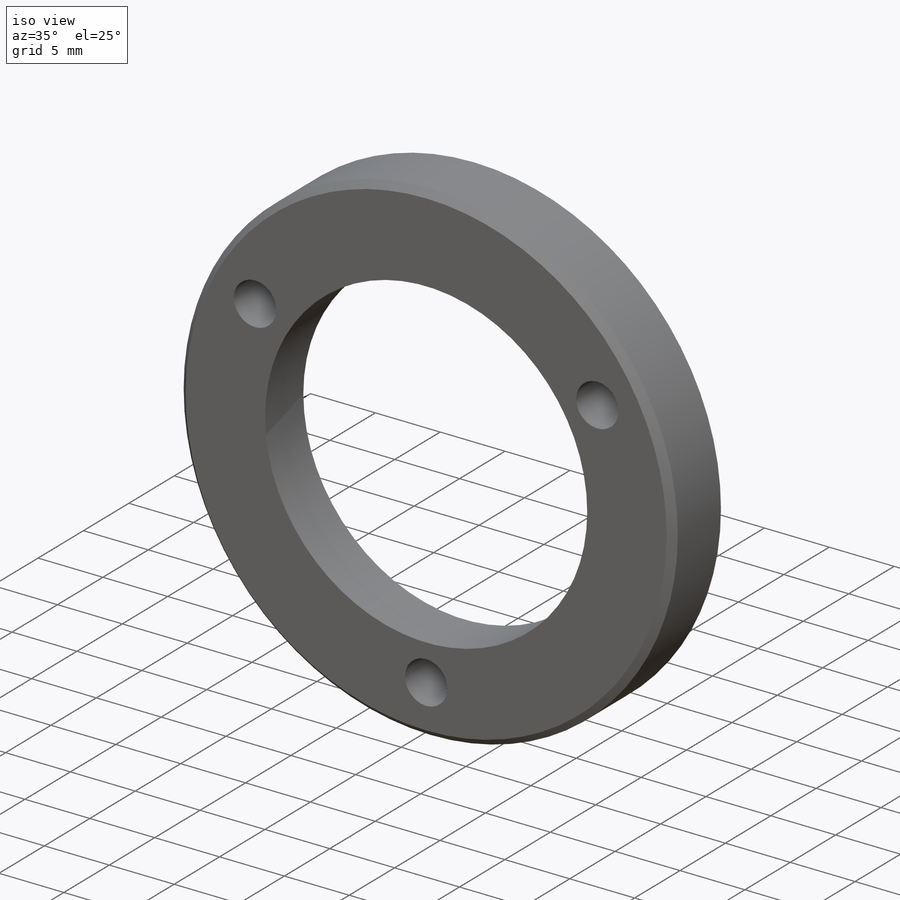
[diagram: iso view]
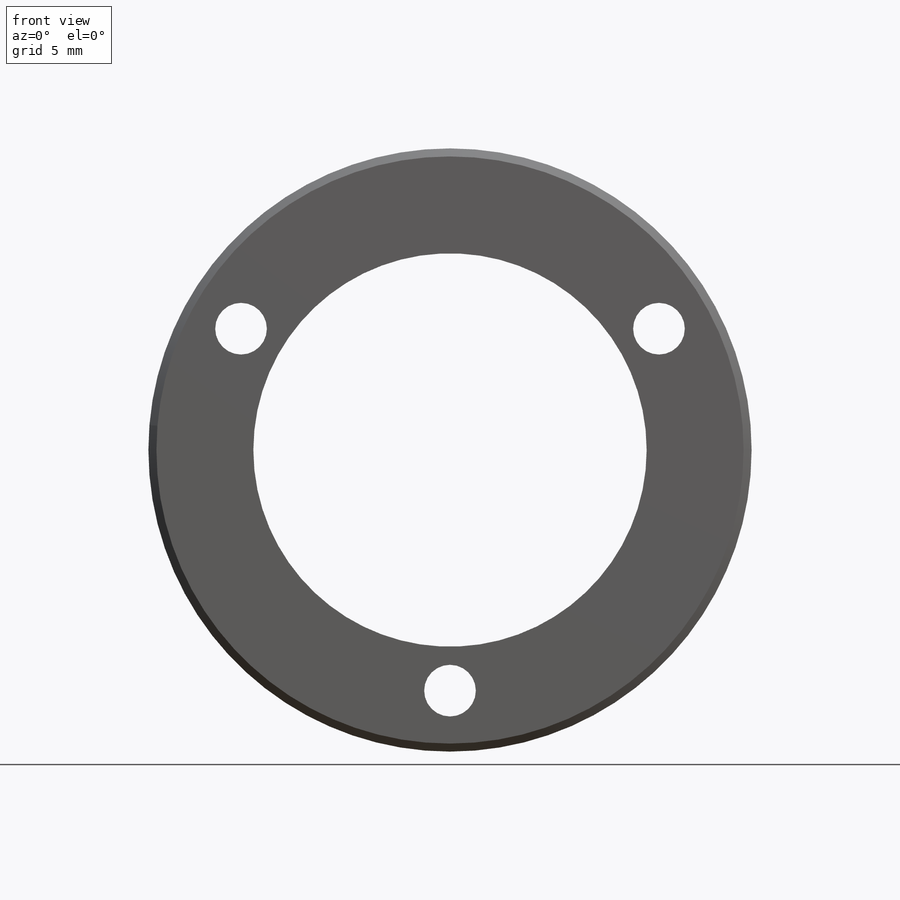
[diagram: front view]
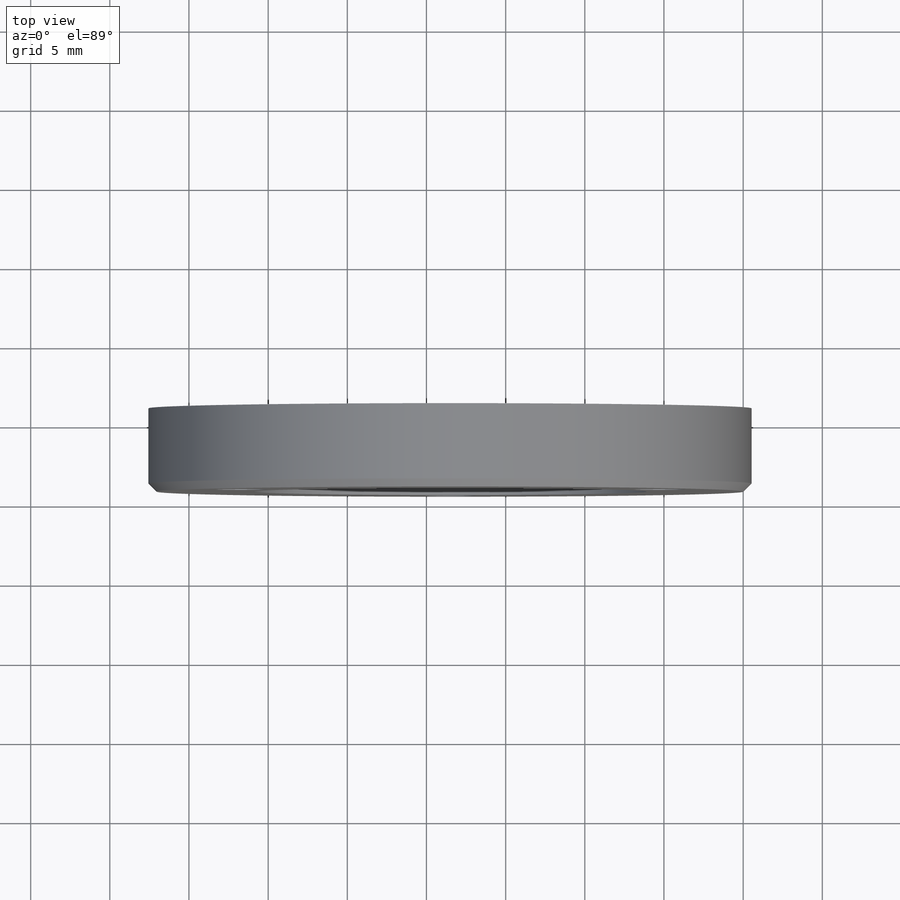
[diagram: top view]
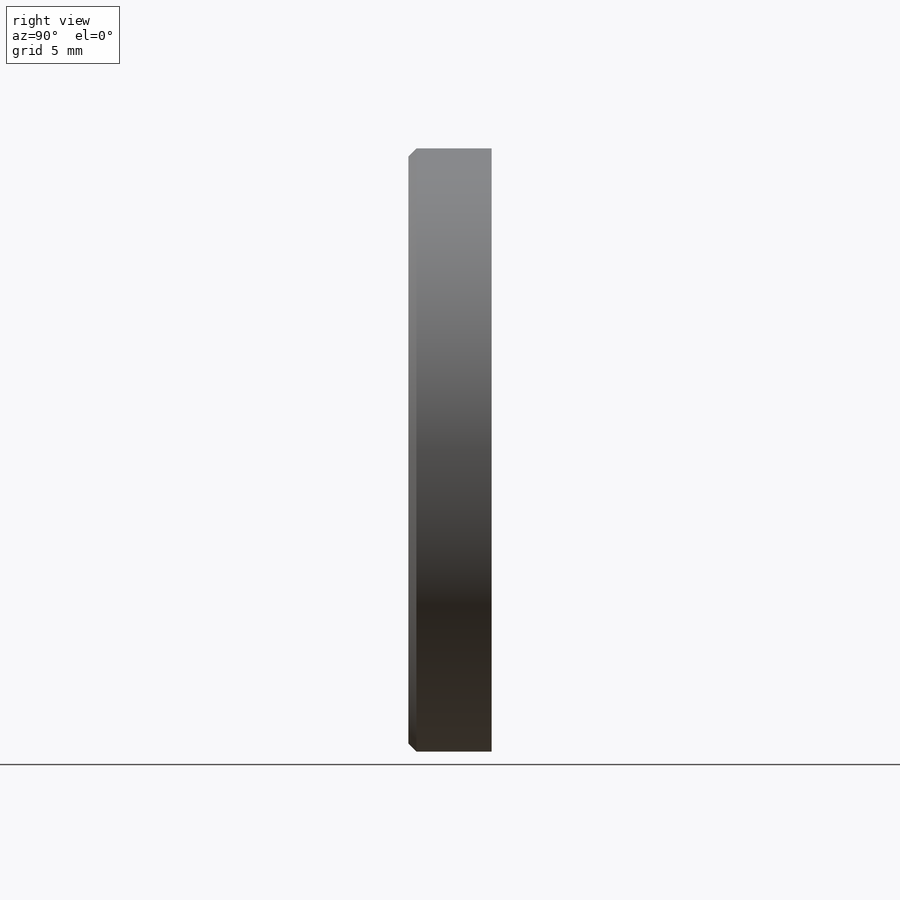
[diagram: right view]
SOLIDWORKS PART (.sldprt)
format: sldprt  version: not decoded by parser v0  size: 469,504 bytes
history: native  units: mm
features: sketch x4, extrude x2, chamfer x2, material x1, hole x1 + 1 further entry (+13 scaffold rows collapsed)
feature tree (24):
  scaffold x13  (default folders/planes/origin — collapsed)
  material  "PEEK"
  "Origin"  ID=-1
  sketch  "Sketch1"  dims[D3=24.8412mm D4=38.1mm D1=31.75mm D2=31.75mm]
  extrude  "Boss-Extrude1"  Depth=4.3688mm
  sketch  "Sketch4"  dims[D1=38.1mm D2=26.924mm]
  extrude  "Boss-Extrude2"  Depth=0.889mm
  hole  "#4 Clearance Hole1"  Diameter=3.2639mm Depth=5.2578mm
  sketch  "Sketch3"  dims[c1.D1=~44.901281mm c1.D2=15.24mm c2.D2=120.0deg]
  sketch  "Sketch2"  dims[hole-wizard template sketch: 60 standard entries collapsed; hole parameters kept: c18.Thru Hole Depth=5.2578mm]
  chamfer  "Chamfer1"  Distance=0.1524mm Angle=45deg
  chamfer  "Chamfer2"  Distance=0.508mm Angle=45deg
decode coverage: 9 of 9 modeling features carry decoded parameters; 1 rows unclassified (native names shown)
note: ~ marks probable driven/reference dimensions
note: suppression state not decoded; provenance and decode notes live in map.json
